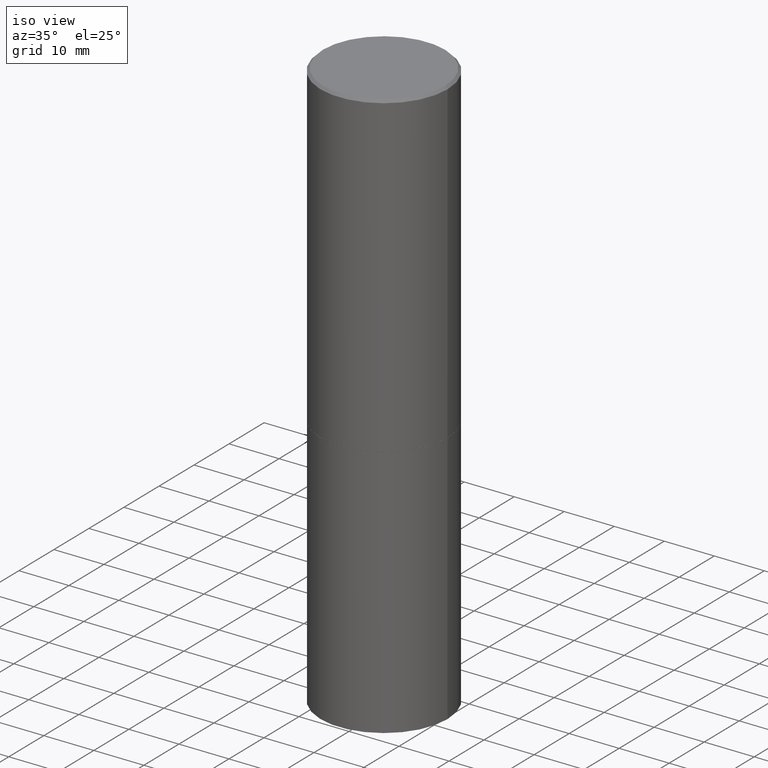
[diagram: clean part render]
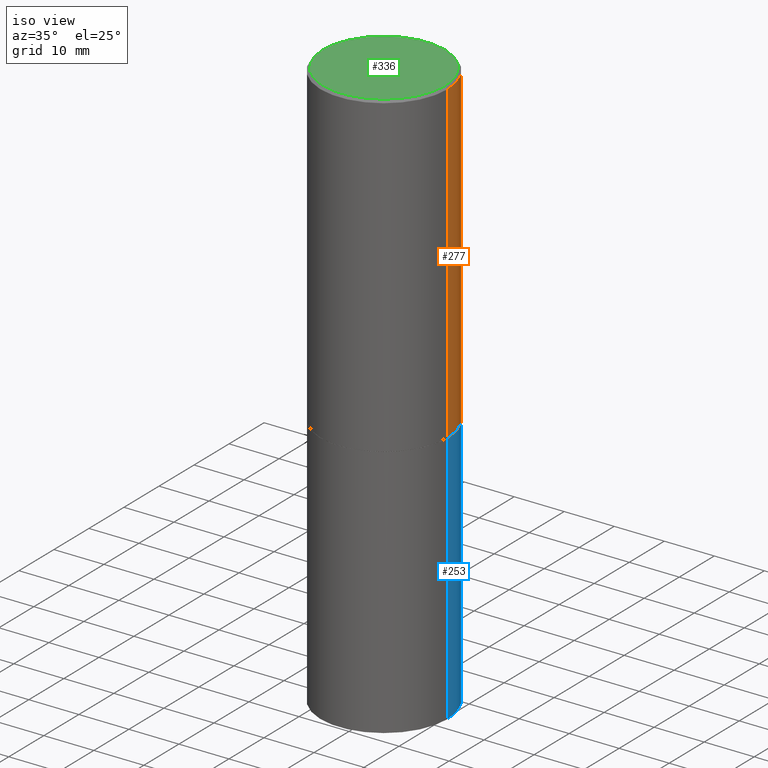
[diagram: same view with three faces highlighted in distinct colors, each labeled with its STEP entity id]
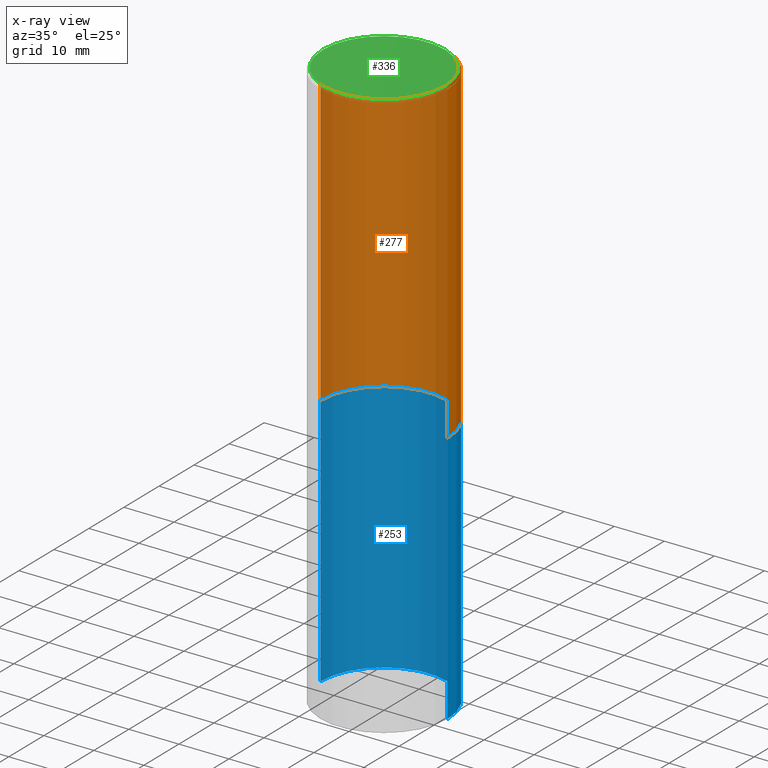
[diagram: x-ray of the same camera — body ghosted, the three highlighted faces saturated]
A machine part, iso view with three faces highlighted in distinct colors.
The next image is the same camera in x-ray (body ghosted, the three faces saturated) — at least one of them is partly hidden behind the body in this view.
Their STEP definitions:

[orange] entity #277 — the highlighted cylindrical surface (partial cylindrical patch) has radius 12.7 mm, axis along (-0, 0, 1).
#3 = EDGE_CURVE ( 'NONE', #314, #7, #320, .T. ) ;
#4 = CYLINDRICAL_SURFACE ( 'NONE', #160, 0.4999999999999997780 ) ;
#7 = VERTEX_POINT ( 'NONE', #241 ) ;
#10 = VERTEX_POINT ( 'NONE', #272 ) ;
#11 = CIRCLE ( 'NONE', #47, 0.4999999999999996114 ) ;
#30 = VECTOR ( 'NONE', #324, 39.37007874015748143 ) ;
#37 = EDGE_LOOP ( 'NONE', ( #244, #122, #71, #100 ) ) ;
#47 = AXIS2_PLACEMENT_3D ( 'NONE', #352, #325, #128 ) ;
#71 = ORIENTED_EDGE ( 'NONE', *, *, #247, .F. ) ;
#73 = CARTESIAN_POINT ( 'NONE',  ( 0.5000000000000000000, -1.221669320461215371E-14, -2.499000000000000110 ) ) ;
#81 = CARTESIAN_POINT ( 'NONE',  ( 0.4999999999999997780, -3.491481338843131778E-15, 2.438088387897966775E-29 ) ) ;
#92 = VECTOR ( 'NONE', #127, 39.37007874015748143 ) ;
#100 = ORIENTED_EDGE ( 'NONE', *, *, #223, .F. ) ;
#115 = DIRECTION ( 'NONE',  ( 1.000000000000000000, -6.982962677686266711E-15, 4.876176775795935793E-29 ) ) ;
#116 = DIRECTION ( 'NONE',  ( -2.445468806185136597E-29, 3.491481338843145583E-15, 1.000000000000000000 ) ) ;
#122 = ORIENTED_EDGE ( 'NONE', *, *, #3, .T. ) ;
#127 = DIRECTION ( 'NONE',  ( -2.445468806185136877E-29, 3.491481338843145188E-15, 1.000000000000000000 ) ) ;
#128 = DIRECTION ( 'NONE',  ( 1.000000000000000000, -6.982962677686266711E-15, 0.000000000000000000 ) ) ;
#129 = AXIS2_PLACEMENT_3D ( 'NONE', #229, #116, #256 ) ;
#137 = CARTESIAN_POINT ( 'NONE',  ( 0.000000000000000000, 0.000000000000000000, 0.000000000000000000 ) ) ;
#160 = AXIS2_PLACEMENT_3D ( 'NONE', #137, #332, #115 ) ;
#175 = FACE_OUTER_BOUND ( 'NONE', #37, .T. ) ;
#176 = VERTEX_POINT ( 'NONE', #73 ) ;
#197 = CIRCLE ( 'NONE', #129, 0.5000000000000000000 ) ;
#209 = CARTESIAN_POINT ( 'NONE',  ( -0.4999999999999997780, 3.552713678800499352E-15, -2.459467545127452050E-29 ) ) ;
#223 = EDGE_CURVE ( 'NONE', #176, #10, #330, .T. ) ;
#229 = CARTESIAN_POINT ( 'NONE',  ( 6.111226546656657010E-29, -8.725211865769021935E-15, -2.499000000000000110 ) ) ;
#241 = CARTESIAN_POINT ( 'NONE',  ( -0.4999999999999996114, 3.421651712066267296E-15, -0.02000000000000010797 ) ) ;
#244 = ORIENTED_EDGE ( 'NONE', *, *, #283, .T. ) ;
#247 = EDGE_CURVE ( 'NONE', #10, #7, #11, .T. ) ;
#256 = DIRECTION ( 'NONE',  ( 1.000000000000000000, -6.982962677686265133E-15, 0.000000000000000000 ) ) ;
#272 = CARTESIAN_POINT ( 'NONE',  ( 0.4999999999999996114, -3.500078625662626318E-15, -0.02000000000000010797 ) ) ;
#277 = ADVANCED_FACE ( 'NONE', ( #175 ), #4, .T. ) ;
#283 = EDGE_CURVE ( 'NONE', #176, #314, #197, .T. ) ;
#314 = VERTEX_POINT ( 'NONE', #335 ) ;
#320 = LINE ( 'NONE', #209, #30 ) ;
#324 = DIRECTION ( 'NONE',  ( -2.445468806185136877E-29, 3.491481338843145188E-15, 1.000000000000000000 ) ) ;
#325 = DIRECTION ( 'NONE',  ( -2.445468806185136597E-29, 3.491481338843145583E-15, 1.000000000000000000 ) ) ;
#330 = LINE ( 'NONE', #81, #92 ) ;
#332 = DIRECTION ( 'NONE',  ( -2.445468806185136597E-29, 3.491481338843145583E-15, 1.000000000000000000 ) ) ;
#335 = CARTESIAN_POINT ( 'NONE',  ( -0.5000000000000000000, -8.448070674724393209E-16, -2.499000000000000110 ) ) ;
#352 = CARTESIAN_POINT ( 'NONE',  ( 4.890937612370299433E-31, -6.982962677686328587E-17, -0.02000000000000010797 ) ) ;

[blue] entity #253 — the highlighted cylindrical surface (partial cylindrical patch) has radius 12.7 mm, axis along (-0, 0, 1).
#13 = VERTEX_POINT ( 'NONE', #146 ) ;
#22 = CARTESIAN_POINT ( 'NONE',  ( 0.5000000000000000000, -1.920314736363729025E-14, -4.500000000000000000 ) ) ;
#27 = EDGE_CURVE ( 'NONE', #205, #13, #181, .T. ) ;
#39 = ORIENTED_EDGE ( 'NONE', *, *, #306, .F. ) ;
#40 = DIRECTION ( 'NONE',  ( -2.445468806185136877E-29, 3.491481338843145188E-15, 1.000000000000000000 ) ) ;
#59 = CYLINDRICAL_SURFACE ( 'NONE', #84, 0.5000000000000000000 ) ;
#65 = VERTEX_POINT ( 'NONE', #189 ) ;
#75 = DIRECTION ( 'NONE',  ( -2.445468806185136597E-29, 3.491481338843145583E-15, 1.000000000000000000 ) ) ;
#77 = AXIS2_PLACEMENT_3D ( 'NONE', #195, #171, #232 ) ;
#84 = AXIS2_PLACEMENT_3D ( 'NONE', #202, #254, #139 ) ;
#94 = ORIENTED_EDGE ( 'NONE', *, *, #27, .F. ) ;
#101 = ORIENTED_EDGE ( 'NONE', *, *, #132, .T. ) ;
#117 = EDGE_LOOP ( 'NONE', ( #101, #178, #39, #94 ) ) ;
#118 = VECTOR ( 'NONE', #40, 39.37007874015748143 ) ;
#123 = VECTOR ( 'NONE', #361, 39.37007874015748143 ) ;
#132 = EDGE_CURVE ( 'NONE', #205, #65, #166, .T. ) ;
#139 = DIRECTION ( 'NONE',  ( 1.000000000000000000, -6.982962677686266711E-15, 4.876176775795935793E-29 ) ) ;
#144 = VERTEX_POINT ( 'NONE', #355 ) ;
#146 = CARTESIAN_POINT ( 'NONE',  ( 0.5000000000000000000, -1.222018468595099830E-14, -2.500000000000000000 ) ) ;
#166 = CIRCLE ( 'NONE', #353, 0.5000000000000000000 ) ;
#171 = DIRECTION ( 'NONE',  ( -2.445468806185136597E-29, 3.491481338843145583E-15, 1.000000000000000000 ) ) ;
#178 = ORIENTED_EDGE ( 'NONE', *, *, #322, .T. ) ;
#181 = LINE ( 'NONE', #302, #118 ) ;
#189 = CARTESIAN_POINT ( 'NONE',  ( -0.5000000000000000000, -8.667471007150509990E-15, -4.500000000000000000 ) ) ;
#195 = CARTESIAN_POINT ( 'NONE',  ( 6.113672015462842613E-29, -8.728703347107864943E-15, -2.500000000000000000 ) ) ;
#202 = CARTESIAN_POINT ( 'NONE',  ( 0.000000000000000000, 0.000000000000000000, 0.000000000000000000 ) ) ;
#205 = VERTEX_POINT ( 'NONE', #22 ) ;
#232 = DIRECTION ( 'NONE',  ( 1.000000000000000000, -6.982962677686269077E-15, 0.000000000000000000 ) ) ;
#253 = ADVANCED_FACE ( 'NONE', ( #257 ), #59, .T. ) ;
#254 = DIRECTION ( 'NONE',  ( -2.445468806185136597E-29, 3.491481338843145583E-15, 1.000000000000000000 ) ) ;
#257 = FACE_OUTER_BOUND ( 'NONE', #117, .T. ) ;
#275 = DIRECTION ( 'NONE',  ( 1.000000000000000000, -6.982962677686266711E-15, 0.000000000000000000 ) ) ;
#289 = CARTESIAN_POINT ( 'NONE',  ( -0.5000000000000000000, 3.552713678800500929E-15, -2.459467545127452891E-29 ) ) ;
#302 = CARTESIAN_POINT ( 'NONE',  ( 0.5000000000000000000, -3.491481338843133355E-15, 2.438088387897967896E-29 ) ) ;
#303 = CIRCLE ( 'NONE', #77, 0.5000000000000000000 ) ;
#306 = EDGE_CURVE ( 'NONE', #13, #144, #303, .T. ) ;
#316 = LINE ( 'NONE', #289, #123 ) ;
#322 = EDGE_CURVE ( 'NONE', #65, #144, #316, .T. ) ;
#327 = CARTESIAN_POINT ( 'NONE',  ( 1.100460962783311469E-28, -1.571166602479415690E-14, -4.500000000000000000 ) ) ;
#353 = AXIS2_PLACEMENT_3D ( 'NONE', #327, #75, #275 ) ;
#355 = CARTESIAN_POINT ( 'NONE',  ( -0.5000000000000000000, -8.667471007150509990E-15, -2.500000000000000000 ) ) ;
#361 = DIRECTION ( 'NONE',  ( -2.445468806185136877E-29, 3.491481338843145188E-15, 1.000000000000000000 ) ) ;

[green] entity #336 — the highlighted planar face has unit normal (0, -0, -1).
#21 = DIRECTION ( 'NONE',  ( 1.000000000000000000, -6.982962677686266711E-15, 4.876036955247133327E-29 ) ) ;
#33 = VERTEX_POINT ( 'NONE', #270 ) ;
#46 = CARTESIAN_POINT ( 'NONE',  ( -3.131554243005659264E-46, 4.471029511141341874E-32, 1.280553747030123384E-17 ) ) ;
#60 = EDGE_CURVE ( 'NONE', #172, #33, #334, .T. ) ;
#62 = DIRECTION ( 'NONE',  ( 2.438088387897960049E-29, -3.491481338843145188E-15, -1.000000000000000000 ) ) ;
#64 = ORIENTED_EDGE ( 'NONE', *, *, #60, .T. ) ;
#76 = AXIS2_PLACEMENT_3D ( 'NONE', #46, #305, #159 ) ;
#87 = PLANE ( 'NONE',  #365 ) ;
#106 = CARTESIAN_POINT ( 'NONE',  ( -3.131554243005659264E-46, 4.471029511141341874E-32, 1.280553747030123384E-17 ) ) ;
#120 = ORIENTED_EDGE ( 'NONE', *, *, #149, .T. ) ;
#149 = EDGE_CURVE ( 'NONE', #33, #172, #297, .T. ) ;
#151 = AXIS2_PLACEMENT_3D ( 'NONE', #106, #354, #21 ) ;
#159 = DIRECTION ( 'NONE',  ( 1.000000000000000000, -6.982962677686266711E-15, 4.876036955247133327E-29 ) ) ;
#162 = CARTESIAN_POINT ( 'NONE',  ( -0.4799999999999995937, 3.386736898677836436E-15, 1.280553747027767124E-17 ) ) ;
#172 = VERTEX_POINT ( 'NONE', #162 ) ;
#199 = CARTESIAN_POINT ( 'NONE',  ( 3.351822085289404787E-15, 0.4799999999999995937, -1.669508273909557867E-15 ) ) ;
#270 = CARTESIAN_POINT ( 'NONE',  ( 0.4799999999999995937, -3.396558832296479338E-15, 1.280553747032483033E-17 ) ) ;
#288 = DIRECTION ( 'NONE',  ( -1.000000000000000000, 6.982962677686265922E-15, -4.876176775795935793E-29 ) ) ;
#297 = CIRCLE ( 'NONE', #151, 0.4799999999999995937 ) ;
#305 = DIRECTION ( 'NONE',  ( -2.445468806185136597E-29, 3.491481338843145583E-15, 1.000000000000000000 ) ) ;
#334 = CIRCLE ( 'NONE', #76, 0.4799999999999995937 ) ;
#336 = ADVANCED_FACE ( 'NONE', ( #339 ), #87, .F. ) ;
#339 = FACE_OUTER_BOUND ( 'NONE', #349, .T. ) ;
#349 = EDGE_LOOP ( 'NONE', ( #64, #120 ) ) ;
#354 = DIRECTION ( 'NONE',  ( -2.445468806185136597E-29, 3.491481338843145583E-15, 1.000000000000000000 ) ) ;
#365 = AXIS2_PLACEMENT_3D ( 'NONE', #199, #62, #288 ) ;